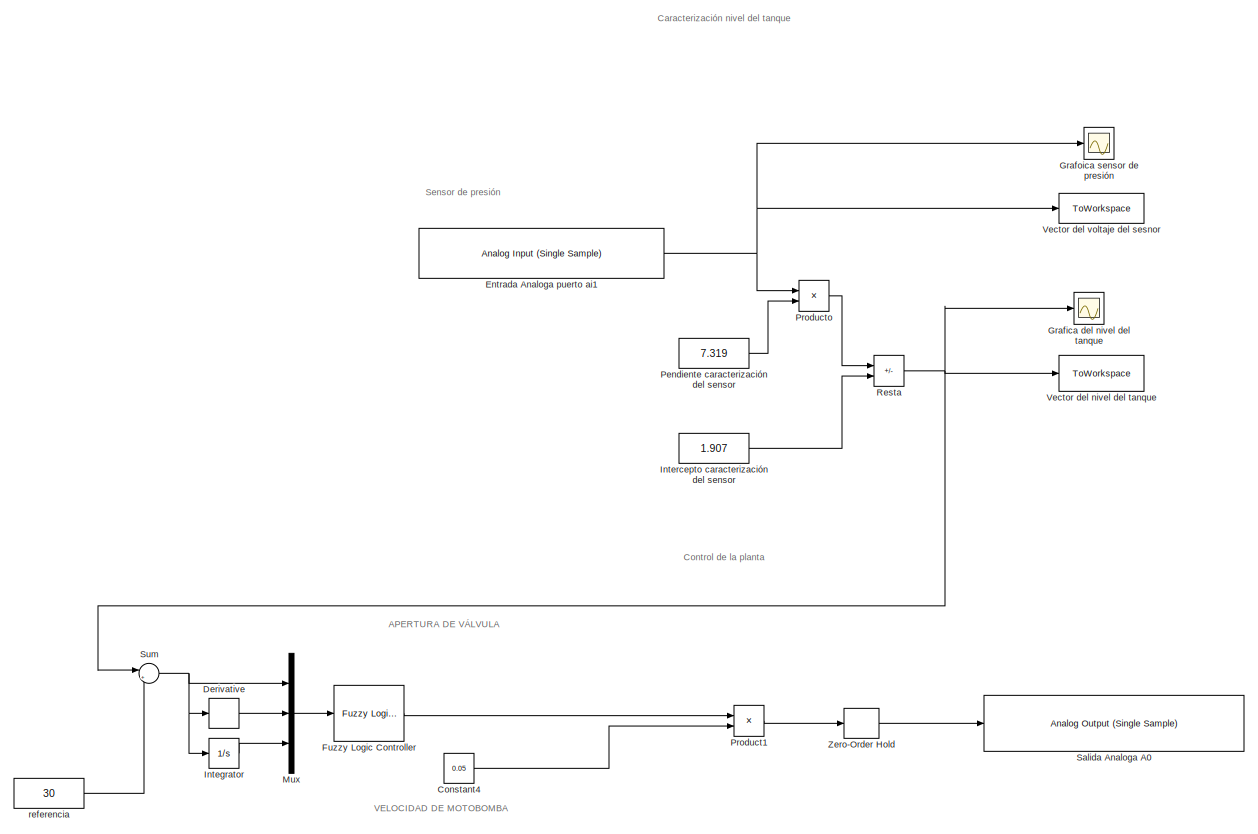
[diagram: root canvas - part 1/2, full width, top band]
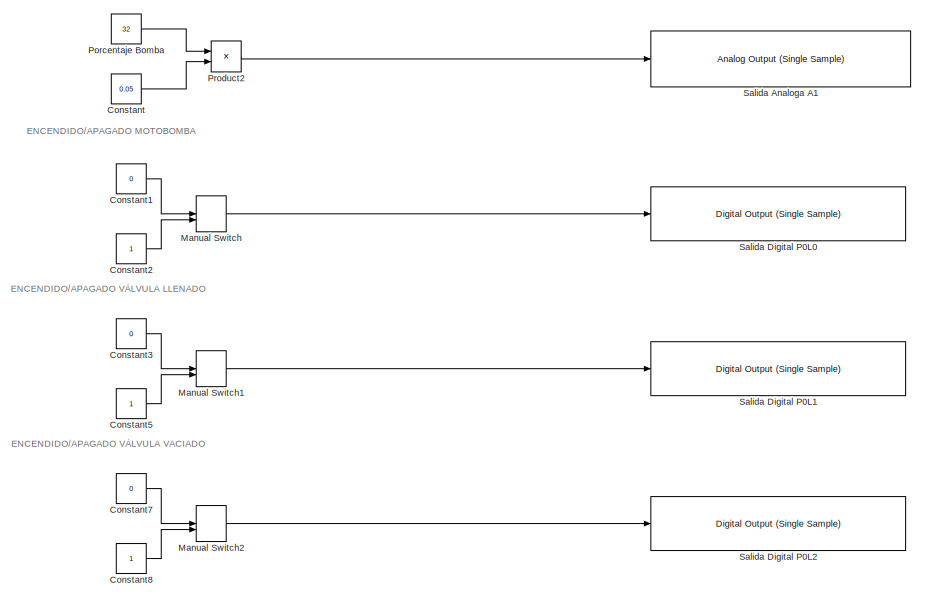
[diagram: root canvas - part 2/2, full width, bottom band]
MODEL slx_d2fddb83d52e
KIND model
CONFIG AbsTol = auto
CONFIG EnableMultiTasking = off
CONFIG FixedStep = auto
CONFIG MaxStep = auto
CONFIG MinStep = auto
CONFIG RelTol = 1e-3
CONFIG SampleTimeConstraint = Unconstrained
CONFIG SolverName = FixedStepAuto
CONFIG StartTime = 0.0
CONFIG StopTime = inf
BLOCK [Constant] Constant
  Value = 0.05
BLOCK [Constant] Constant1
  OutDataTypeStr = boolean
  Value = 0
BLOCK [Constant] Constant2
  OutDataTypeStr = boolean
BLOCK [Constant] Constant3
  OutDataTypeStr = boolean
  Value = 0
BLOCK [Constant] Constant4
  Value = 0.05
BLOCK [Constant] Constant5
  OutDataTypeStr = boolean
BLOCK [Constant] Constant7
  OutDataTypeStr = boolean
  Value = 0
BLOCK [Constant] Constant8
  OutDataTypeStr = boolean
BLOCK [Derivative] Derivative
BLOCK [Reference] Entrada Analoga puerto ai1  REF=daqlib/Analog Input
(Single Sample)
  SourceBlock = daqlib/Analog Input\n(Single Sample)
  SourceType = Analog Input (Single Sample)
BLOCK [Reference] Fuzzy Logic Controller  REF=fuzblock/Fuzzy Logic   (lib defined in mdl_858b3b3e7478)
Controller
  SourceBlock = fuzblock/Fuzzy Logic \nController
  SourceType = Fuzzy Inference System
BLOCK [Scope] Grafica del nivel del tanque
  Floating = off
  NumInputPorts = 1
  ScopeSpecificationString = Simulink.scopes.TimeScopeBlockCfg('CurrentConfiguration', extmgr.ConfigurationSet(extmgr.Configuration('Core','General UI',true),extmgr.Configuration('Core','Source UI',true),extmgr.Configuration('Sources','WiredSimulink',true,'DataLoggingSaveFormat','StructureWithTime','DataLoggingLimitDataPoints',true,'DataLoggingDecimation','1','DataLoggingDecimateData',true),extmgr.Configuration('Visuals','Tim...<+1882ch>
BLOCK [Scope] Grafoica sensor de presión
  Floating = off
  NumInputPorts = 1
  ScopeSpecificationString = Simulink.scopes.TimeScopeBlockCfg('CurrentConfiguration', extmgr.ConfigurationSet(extmgr.Configuration('Core','General UI',true),extmgr.Configuration('Core','Source UI',true),extmgr.Configuration('Sources','WiredSimulink',true,'DataLoggingSaveFormat','StructureWithTime','DataLoggingLimitDataPoints',true,'DataLoggingDecimation','1','DataLoggingDecimateData',true,'DataLoggingVariableName','ScopeData...<+1863ch>
BLOCK [Integrator] Integrator
BLOCK [Constant] Intercepto caracterización del sensor
  Value = 1.907
BLOCK [ManualSwitch] Manual Switch
  NameLocation = top
BLOCK [ManualSwitch] Manual Switch1
  CurrentSetting = 0
  NameLocation = top
BLOCK [ManualSwitch] Manual Switch2
  NameLocation = top
BLOCK [Mux] Mux
  DisplayOption = bar
  Inputs = 3
BLOCK [Constant] Pendiente caracterización del sensor
  Value = 7.319
BLOCK [Constant] Porcentaje Bomba
  Value = 32
BLOCK [Product] Product1
  RndMeth = Zero
BLOCK [Product] Product2
  RndMeth = Zero
BLOCK [Product] Producto
  RndMeth = Zero
BLOCK [Sum] Resta
  IconShape = rectangular
  Inputs = +-
BLOCK [Reference] Salida Analoga A0  REF=daqlib/Analog Output
(Single Sample)
  SourceBlock = daqlib/Analog Output\n(Single Sample)
  SourceType = Analog Output (Single Sample)
BLOCK [Reference] Salida Analoga A1  REF=daqlib/Analog Output
(Single Sample)
  SourceBlock = daqlib/Analog Output\n(Single Sample)
  SourceType = Analog Output (Single Sample)
BLOCK [Reference] Salida Digital P0L0  REF=daqlib/Digital Output
(Single Sample)
  SourceBlock = daqlib/Digital Output\n(Single Sample)
  SourceType = Digital Output (Single Sample)
BLOCK [Reference] Salida Digital P0L1  REF=daqlib/Digital Output
(Single Sample)
  SourceBlock = daqlib/Digital Output\n(Single Sample)
  SourceType = Digital Output (Single Sample)
BLOCK [Reference] Salida Digital P0L2  REF=daqlib/Digital Output
(Single Sample)
  SourceBlock = daqlib/Digital Output\n(Single Sample)
  SourceType = Digital Output (Single Sample)
BLOCK [Sum] Sum
  Inputs = |+-
BLOCK [ToWorkspace] Vector del nivel del tanque
  MaxDataPoints = inf
  SampleTime = 0.04
  Save2DSignal = 2-D array (concatenate along first dimension)
  VariableName = Nivel_sensor
BLOCK [ToWorkspace] Vector del voltaje del sesnor
  MaxDataPoints = inf
  SampleTime = 0.04
  Save2DSignal = 2-D array (concatenate along first dimension)
  VariableName = Voltaje_sensor
BLOCK [ZeroOrderHold] Zero-Order Hold
BLOCK [Constant] referencia
  Value = 30
ANNOTATION (root): APERTURA DE VÁLVULA
ANNOTATION (root): ENCENDIDO/APAGADO MOTOBOMBA
ANNOTATION (root): ENCENDIDO/APAGADO VÁLVULA LLENADO
ANNOTATION (root): ENCENDIDO/APAGADO VÁLVULA VACIADO
ANNOTATION (root): VELOCIDAD DE MOTOBOMBA
ANNOTATION (root): Sensor de presión
ANNOTATION (root): Caracterización nivel del tanque
ANNOTATION (root): Control de la planta
LINE Constant1:1 -> Manual Switch:1
LINE Constant2:1 -> Manual Switch:2
LINE Constant3:1 -> Manual Switch1:1
LINE Constant4:1 -> Product1:2
LINE Constant5:1 -> Manual Switch1:2
LINE Constant7:1 -> Manual Switch2:1
LINE Constant8:1 -> Manual Switch2:2
LINE Constant:1 -> Product2:2
LINE Derivative:1 -> Mux:2
NET Entrada Analoga puerto ai1:1 -> Grafoica sensor de presión:1, Producto:1, Vector del voltaje del sesnor:1
LINE Fuzzy Logic Controller:1 -> Product1:1
LINE Integrator:1 -> Mux:3
LINE Intercepto caracterización del sensor:1 -> Resta:2
LINE Manual Switch1:1 -> Salida Digital P0L1:1
LINE Manual Switch2:1 -> Salida Digital P0L2:1
LINE Manual Switch:1 -> Salida Digital P0L0:1
LINE Mux:1 -> Fuzzy Logic Controller:1
LINE Pendiente caracterización del sensor:1 -> Producto:2
LINE Porcentaje Bomba:1 -> Product2:1
LINE Product1:1 -> Zero-Order Hold:1
LINE Product2:1 -> Salida Analoga A1:1
LINE Producto:1 -> Resta:1
NET Resta:1 -> Grafica del nivel del tanque:1, Sum:1, Vector del nivel del tanque:1
NET Sum:1 -> Derivative:1, Integrator:1, Mux:1
LINE Zero-Order Hold:1 -> Salida Analoga A0:1
LINE referencia:1 -> Sum:2
note: NET lines group one-source signal fan-out (src -> all destinations, sorted); 1:1 wires keep LINE
